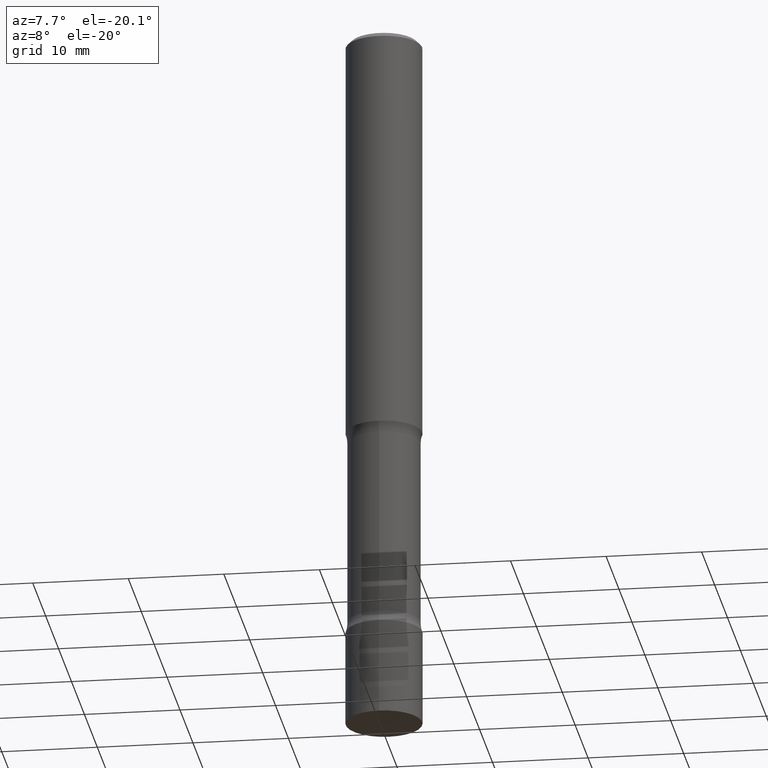
[diagram: clean part render]
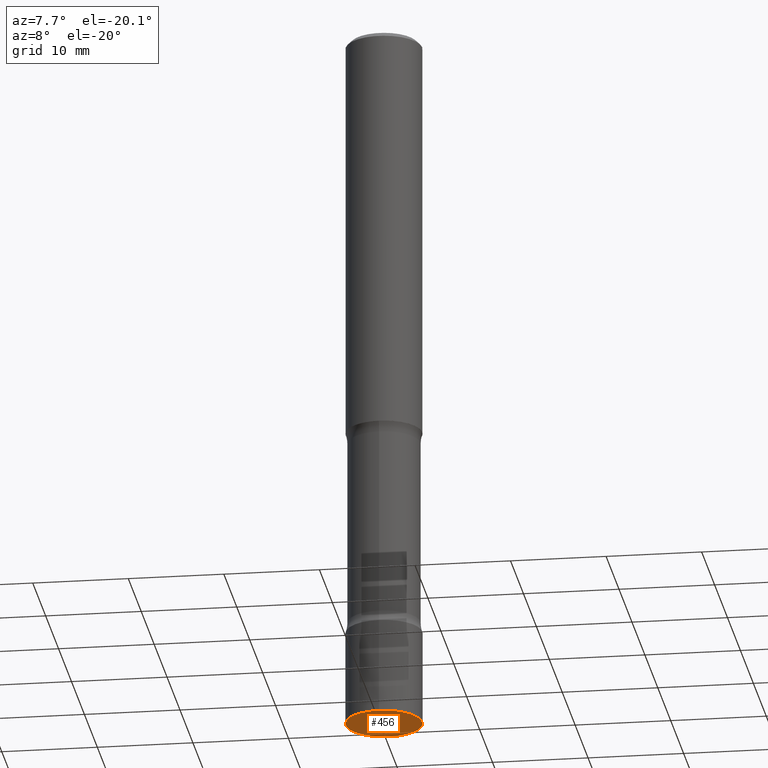
[diagram: same view with one face highlighted and labeled with its STEP entity id]
A machine part, auxiliary view. The second image highlights one B-rep face of the part: STEP entity #456.
In plain terms, the highlighted planar face has unit normal (0, -0, -1).
Its self-contained STEP definition (entity closure, byte-faithful):
#4 = PLANE ( 'NONE',  #40 ) ;
#25 = AXIS2_PLACEMENT_3D ( 'NONE', #112, #151, #426 ) ;
#40 = AXIS2_PLACEMENT_3D ( 'NONE', #402, #164, #404 ) ;
#51 = EDGE_LOOP ( 'NONE', ( #182, #198 ) ) ;
#57 = DIRECTION ( 'NONE',  ( -2.445676802554542366E-29, 3.491183476203738463E-15, 1.000000000000000000 ) ) ;
#112 = CARTESIAN_POINT ( 'NONE',  ( 7.221594462583051654E-29, -1.030876656853439613E-14, -2.952799999999999869 ) ) ;
#151 = DIRECTION ( 'NONE',  ( -2.445676802554542366E-29, 3.491183476203738463E-15, 1.000000000000000000 ) ) ;
#157 = CARTESIAN_POINT ( 'NONE',  ( -1.099816621735514116E-15, -0.1575000000000102707, -2.952799999999998981 ) ) ;
#164 = DIRECTION ( 'NONE',  ( 2.445676802554542085E-29, -3.491183476203738463E-15, -1.000000000000000000 ) ) ;
#182 = ORIENTED_EDGE ( 'NONE', *, *, #315, .F. ) ;
#198 = ORIENTED_EDGE ( 'NONE', *, *, #503, .F. ) ;
#250 = FACE_OUTER_BOUND ( 'NONE', #51, .T. ) ;
#315 = EDGE_CURVE ( 'NONE', #362, #480, #429, .T. ) ;
#346 = CIRCLE ( 'NONE', #377, 0.1574999999999999456 ) ;
#362 = VERTEX_POINT ( 'NONE', #157 ) ;
#367 = CARTESIAN_POINT ( 'NONE',  ( 1.119104808822224657E-15, 0.1574999999999896483, -2.952800000000000313 ) ) ;
#377 = AXIS2_PLACEMENT_3D ( 'NONE', #479, #57, #415 ) ;
#402 = CARTESIAN_POINT ( 'NONE',  ( 7.220980290903470182E-29, -1.030964609733603853E-14, -2.952799999999999869 ) ) ;
#404 = DIRECTION ( 'NONE',  ( 6.982962677686265922E-15, 1.000000000000000000, -3.491183476203738463E-15 ) ) ;
#415 = DIRECTION ( 'NONE',  ( -6.982962677686265922E-15, -1.000000000000000000, 3.469013325287954477E-15 ) ) ;
#426 = DIRECTION ( 'NONE',  ( -6.982962677686265922E-15, -1.000000000000000000, 3.469013325287954477E-15 ) ) ;
#429 = CIRCLE ( 'NONE', #25, 0.1574999999999999456 ) ;
#456 = ADVANCED_FACE ( 'NONE', ( #250 ), #4, .T. ) ;
#479 = CARTESIAN_POINT ( 'NONE',  ( 7.221594462583051654E-29, -1.030876656853439613E-14, -2.952799999999999869 ) ) ;
#480 = VERTEX_POINT ( 'NONE', #367 ) ;
#503 = EDGE_CURVE ( 'NONE', #480, #362, #346, .T. ) ;